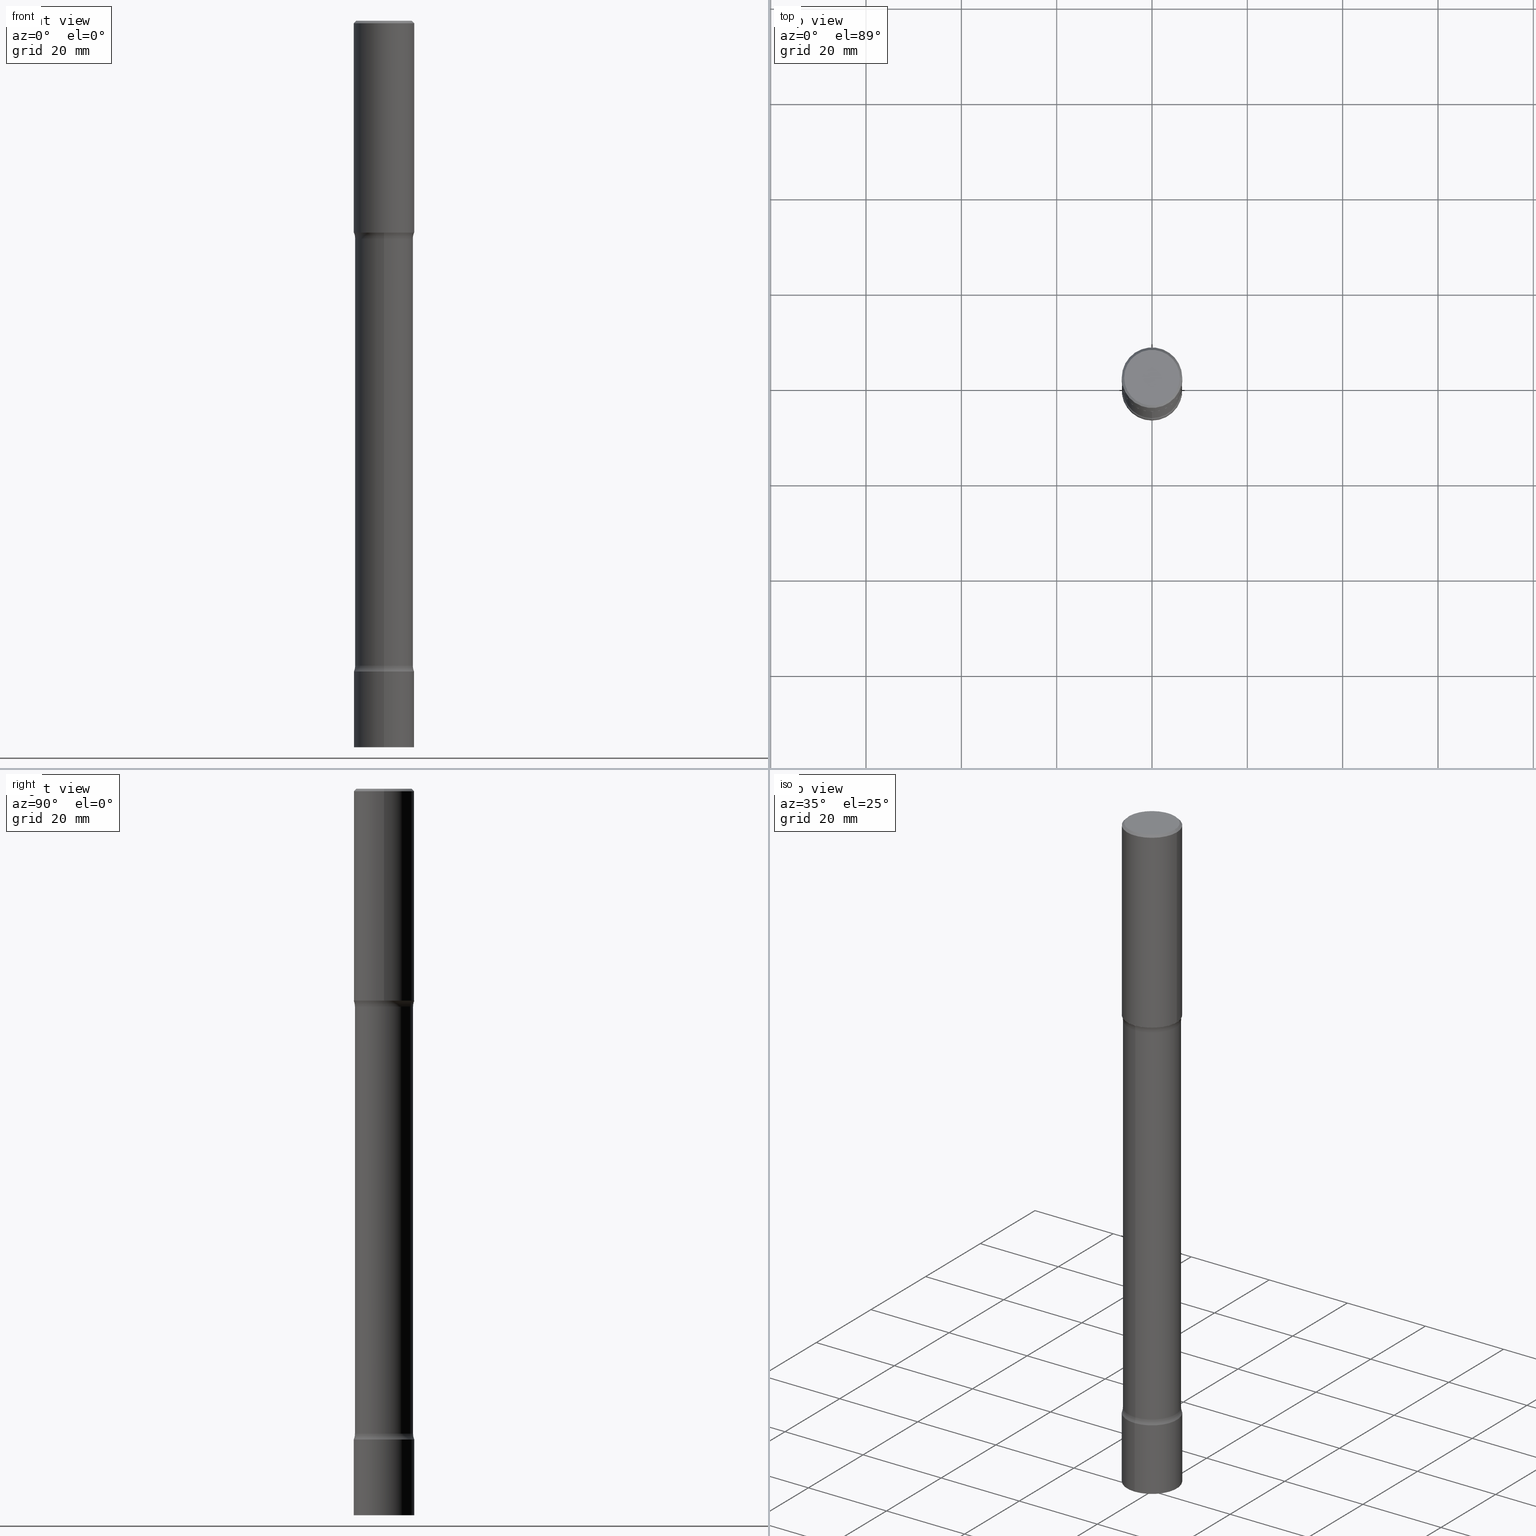
[diagram: canonical four-view strip — front | top / right | iso, engineering-drawing reading convention]
A machine part, canonical four-view strip (front | top / right | iso — engineering-drawing reading convention). The complete STEP part file that produces these views, byte-faithful:
ISO-10303-21;
HEADER;
FILE_DESCRIPTION (( 'STEP AP203' ),
    '1' );
FILE_NAME ('32697.STEP',
    '2024-03-11T13:16:14',
    ( '' ),
    ( '' ),
    'SwSTEP 2.0',
    'SolidWorks 2023',
    '' );
FILE_SCHEMA (( 'CONFIG_CONTROL_DESIGN' ));
ENDSEC;

DATA;
#1 = CYLINDRICAL_SURFACE ( 'NONE', #378, 0.2499999999999998612 ) ;
#2 = EDGE_CURVE ( 'NONE', #488, #205, #156, .T. ) ;
#3 = ORIENTED_EDGE ( 'NONE', *, *, #372, .T. ) ;
#4 =( LENGTH_UNIT ( ) NAMED_UNIT ( * ) SI_UNIT ( $, .METRE. ) );
#5 = DIRECTION ( 'NONE',  ( -1.000000000000000000, 6.982962677686266711E-15, 0.000000000000000000 ) ) ;
#6 = CARTESIAN_POINT ( 'NONE',  ( -2.504081769186481209E-15, -0.3650000000000189204, -5.326010205144336318 ) ) ;
#7 = AXIS2_PLACEMENT_3D ( 'NONE', #375, #101, #177 ) ;
#8 = VECTOR ( 'NONE', #242, 39.37007874015748143 ) ;
#9 = EDGE_LOOP ( 'NONE', ( #315, #24, #418, #357 ) ) ;
#10 = APPROVAL_STATUS ( 'not_yet_approved' ) ;
#11 = DIRECTION ( 'NONE',  ( 2.869131418733858513E-29, -2.884772364294969473E-15, -1.000000000000000000 ) ) ;
#12 = ADVANCED_FACE ( 'NONE', ( #411 ), #267, .F. ) ;
#13 = ORIENTED_EDGE ( 'NONE', *, *, #455, .T. ) ;
#14 = LINE ( 'NONE', #80, #148 ) ;
#15 = TOROIDAL_SURFACE ( 'NONE', #324, 0.3650000000000003242, 0.1249999999999999584 ) ;
#16 = CONICAL_SURFACE ( 'NONE', #352, 0.2499999999999997224, 0.7853981633974477239 ) ;
#17 = APPROVAL_PERSON_ORGANIZATION ( #338, #334, #508 ) ;
#18 = DIRECTION ( 'NONE',  ( -2.445468806185136597E-29, 3.491481338843145583E-15, 1.000000000000000000 ) ) ;
#19 = VERTEX_POINT ( 'NONE', #76 ) ;
#20 = ADVANCED_FACE ( 'NONE', ( #211 ), #248, .F. ) ;
#21 = DIRECTION ( 'NONE',  ( 2.869131418733858513E-29, -2.884772364294969473E-15, -1.000000000000000000 ) ) ;
#22 = VERTEX_POINT ( 'NONE', #40 ) ;
#23 = CYLINDRICAL_SURFACE ( 'NONE', #469, 0.2400000000000014622 ) ;
#24 = ORIENTED_EDGE ( 'NONE', *, *, #296, .T. ) ;
#25 = CLOSED_SHELL ( 'NONE', ( #171, #96, #406, #136, #81, #158 ) ) ;
#26 = AXIS2_PLACEMENT_3D ( 'NONE', #260, #348, #423 ) ;
#27 = FACE_OUTER_BOUND ( 'NONE', #323, .T. ) ;
#28 = CARTESIAN_POINT ( 'NONE',  ( -4.175405657340879278E-46, 5.961372681521788801E-32, 1.707404996040164512E-17 ) ) ;
#29 = CARTESIAN_POINT ( 'NONE',  ( 2.920953000947528011E-29, -8.398321492597618076E-15, -1.798989794855665014 ) ) ;
#30 = EDGE_CURVE ( 'NONE', #127, #262, #281, .T. ) ;
#31 = DIRECTION ( 'NONE',  ( -2.445167468974182699E-29, 3.491912870880280667E-15, 1.000000000000000000 ) ) ;
#32 = DIRECTION ( 'NONE',  ( -2.445167468974182699E-29, 3.491912870880280272E-15, 1.000000000000000000 ) ) ;
#33 = ORIENTED_EDGE ( 'NONE', *, *, #303, .T. ) ;
#34 = VECTOR ( 'NONE', #32, 39.37007874015748143 ) ;
#35 = CALENDAR_DATE ( 2024, 11, 3 ) ;
#36 = EDGE_CURVE ( 'NONE', #262, #127, #70, .T. ) ;
#37 = LENGTH_MEASURE_WITH_UNIT ( LENGTH_MEASURE( 0.02539999999999999897 ), #4 );
#38 = ORIENTED_EDGE ( 'NONE', *, *, #447, .F. ) ;
#39 = PERSON_AND_ORGANIZATION_ROLE ( 'creator' ) ;
#40 = CARTESIAN_POINT ( 'NONE',  ( 0.2499999999999997224, -1.784954126219743822E-15, -0.02000000000000000042 ) ) ;
#41 = EDGE_LOOP ( 'NONE', ( #339, #62, #364, #480 ) ) ;
#42 = APPLICATION_PROTOCOL_DEFINITION ( 'international standard', 'config_control_design', 1994, #121 ) ;
#43 = LOCAL_TIME ( 9, 16, 14.00000000000000000, #227 ) ;
#44 = CARTESIAN_POINT ( 'NONE',  ( 0.2500000000000000000, -7.855833012397075293E-15, -1.750000000000001332 ) ) ;
#45 = EDGE_CURVE ( 'NONE', #275, #137, #131, .T. ) ;
#46 = ORIENTED_EDGE ( 'NONE', *, *, #346, .T. ) ;
#47 = DATE_AND_TIME ( #149, #43 ) ;
#48 = DIRECTION ( 'NONE',  ( 1.000000000000000000, -6.982962677686265922E-15, 4.876176775795935793E-29 ) ) ;
#49 = CARTESIAN_POINT ( 'NONE',  ( 1.302459181810417859E-28, -1.859566524174961022E-14, -5.326010205144338094 ) ) ;
#50 = CARTESIAN_POINT ( 'NONE',  ( 1.776356839400388910E-15, 0.2499999999999789613, -6.000000000000001776 ) ) ;
#51 = AXIS2_PLACEMENT_3D ( 'NONE', #313, #475, #274 ) ;
#52 = FACE_OUTER_BOUND ( 'NONE', #441, .T. ) ;
#53 = DATE_AND_TIME ( #263, #496 ) ;
#54 = DIRECTION ( 'NONE',  ( 6.982962677686265922E-15, 1.000000000000000000, -3.414809992080300328E-15 ) ) ;
#55 = CARTESIAN_POINT ( 'NONE',  ( 1.776356839400396798E-15, 0.2499999999999811262, -5.375000000000002665 ) ) ;
#56 = AXIS2_PLACEMENT_3D ( 'NONE', #144, #170, #214 ) ;
#57 = EDGE_LOOP ( 'NONE', ( #84, #259, #350, #287 ) ) ;
#58 = CARTESIAN_POINT ( 'NONE',  ( 1.745740669421699206E-15, 0.2499999999999814315, -5.375000000000002665 ) ) ;
#59 = EDGE_LOOP ( 'NONE', ( #477, #236, #95, #502 ) ) ;
#60 = DIRECTION ( 'NONE',  ( -6.982962677686265922E-15, -1.000000000000000000, 4.370956789862822727E-15 ) ) ;
#61 = CARTESIAN_POINT ( 'NONE',  ( 4.890937612370273159E-31, -6.982962677686291609E-17, -0.02000000000000000042 ) ) ;
#62 = ORIENTED_EDGE ( 'NONE', *, *, #183, .T. ) ;
#63 = CIRCLE ( 'NONE', #255, 0.1249999999999999584 ) ;
#64 = DIRECTION ( 'NONE',  ( -2.445468806185136877E-29, 3.491481338843145188E-15, 1.000000000000000000 ) ) ;
#65 = CARTESIAN_POINT ( 'NONE',  ( 0.000000000000000000, 0.000000000000000000, 0.000000000000000000 ) ) ;
#66 = CC_DESIGN_PERSON_AND_ORGANIZATION_ASSIGNMENT ( #69, #388, ( #285 ) ) ;
#67 = PLANE ( 'NONE',  #225 ) ;
#68 = UNCERTAINTY_MEASURE_WITH_UNIT (LENGTH_MEASURE( 1.000000000000000082E-05 ), #221, 'distance_accuracy_value', 'NONE');
#69 = PERSON_AND_ORGANIZATION ( #194, #336 ) ;
#70 = CIRCLE ( 'NONE', #503, 0.2299999999999997324 ) ;
#71 = AXIS2_PLACEMENT_3D ( 'NONE', #290, #175, #452 ) ;
#72 = MECHANICAL_CONTEXT ( 'NONE', #311, 'mechanical' ) ;
#73 = ORIENTED_EDGE ( 'NONE', *, *, #271, .T. ) ;
#74 = COORDINATED_UNIVERSAL_TIME_OFFSET ( 5, 0, .BEHIND. ) ;
#75 = CALENDAR_DATE ( 2024, 11, 3 ) ;
#76 = CARTESIAN_POINT ( 'NONE',  ( -1.680822009453898416E-15, -0.2400000000000195588, -5.326010205144336318 ) ) ;
#77 = AXIS2_PLACEMENT_3D ( 'NONE', #128, #278, #79 ) ;
#78 = PLANE ( 'NONE',  #71 ) ;
#79 = DIRECTION ( 'NONE',  ( 6.982962677686265922E-15, 1.000000000000000000, -4.553079989440420159E-15 ) ) ;
#80 = CARTESIAN_POINT ( 'NONE',  ( -0.2499999999999997224, 1.675911042644701999E-15, -0.02000000000000000042 ) ) ;
#81 = ADVANCED_FACE ( 'NONE', ( #114 ), #67, .F. ) ;
#82 = CARTESIAN_POINT ( 'NONE',  ( 2.548781377355619641E-15, 0.3649999999999817835, -5.326010205144338983 ) ) ;
#83 = DIRECTION ( 'NONE',  ( 2.869131418733858513E-29, -2.884772364294969473E-15, -1.000000000000000000 ) ) ;
#84 = ORIENTED_EDGE ( 'NONE', *, *, #271, .F. ) ;
#85 = CARTESIAN_POINT ( 'NONE',  ( 0.2499999999999997224, -1.784954126219743822E-15, -0.02000000000000000042 ) ) ;
#86 = VERTEX_POINT ( 'NONE', #306 ) ;
#87 = MANIFOLD_SOLID_BREP ( 'Body-Move/Copy2[1]', #89 ) ;
#88 = DIRECTION ( 'NONE',  ( -2.445468806185136597E-29, 3.491481338843145583E-15, 1.000000000000000000 ) ) ;
#89 = CLOSED_SHELL ( 'NONE', ( #320, #198, #229, #291 ) ) ;
#90 = AXIS2_PLACEMENT_3D ( 'NONE', #6, #355, #233 ) ;
#91 = ORIENTED_EDGE ( 'NONE', *, *, #36, .T. ) ;
#92 = LINE ( 'NONE', #207, #445 ) ;
#93 = DIRECTION ( 'NONE',  ( 2.869131418733858513E-29, -2.884772364294969473E-15, -1.000000000000000000 ) ) ;
#94 = DESIGN_CONTEXT ( 'detailed design', #121, 'design' ) ;
#95 = ORIENTED_EDGE ( 'NONE', *, *, #2, .F. ) ;
#96 = ADVANCED_FACE ( 'NONE', ( #98 ), #361, .T. ) ;
#97 = CARTESIAN_POINT ( 'NONE',  ( -2.504081769186592833E-15, -0.3650000000000103162, -1.798989794855663904 ) ) ;
#98 = FACE_OUTER_BOUND ( 'NONE', #367, .T. ) ;
#99 = CIRCLE ( 'NONE', #77, 0.2400000000000009626 ) ;
#100 = DIRECTION ( 'NONE',  ( 1.000000000000000000, -6.982962677686266711E-15, 0.000000000000000000 ) ) ;
#101 = DIRECTION ( 'NONE',  ( 2.869131418733858513E-29, -2.884772364294969473E-15, -1.000000000000000000 ) ) ;
#102 = EDGE_CURVE ( 'NONE', #408, #173, #425, .T. ) ;
#103 = DIRECTION ( 'NONE',  ( 0.000000000000000000, 0.000000000000000000, 1.000000000000000000 ) ) ;
#104 = AXIS2_PLACEMENT_3D ( 'NONE', #110, #345, #373 ) ;
#105 = ORIENTED_EDGE ( 'NONE', *, *, #30, .T. ) ;
#106 = AXIS2_PLACEMENT_3D ( 'NONE', #49, #310, #397 ) ;
#107 = DATE_TIME_ROLE ( 'creation_date' ) ;
#108 = ORIENTED_EDGE ( 'NONE', *, *, #264, .T. ) ;
#109 =( NAMED_UNIT ( * ) PLANE_ANGLE_UNIT ( ) SI_UNIT ( $, .RADIAN. ) );
#110 = CARTESIAN_POINT ( 'NONE',  ( 4.279570410823991847E-29, -6.110092342975509404E-15, -1.750000000000001332 ) ) ;
#111 = ORIENTED_EDGE ( 'NONE', *, *, #241, .F. ) ;
#112 = EDGE_CURVE ( 'NONE', #205, #488, #485, .T. ) ;
#113 = COORDINATED_UNIVERSAL_TIME_OFFSET ( 5, 0, .BEHIND. ) ;
#114 = FACE_OUTER_BOUND ( 'NONE', #484, .T. ) ;
#115 = CIRCLE ( 'NONE', #26, 0.2500000000000020539 ) ;
#116 = FACE_OUTER_BOUND ( 'NONE', #478, .T. ) ;
#117 = APPROVAL_ROLE ( '' ) ;
#118 = LINE ( 'NONE', #167, #184 ) ;
#119 = ADVANCED_FACE ( 'NONE', ( #116 ), #15, .F. ) ;
#120 = LINE ( 'NONE', #358, #272 ) ;
#121 = APPLICATION_CONTEXT ( 'configuration controlled 3d designs of mechanical parts and assemblies' ) ;
#122 = DIRECTION ( 'NONE',  ( -2.445468806185136877E-29, 3.491481338843145188E-15, 1.000000000000000000 ) ) ;
#123 = TOROIDAL_SURFACE ( 'NONE', #106, 0.3650000000000003242, 0.1249999999999999584 ) ;
#124 = ORIENTED_EDGE ( 'NONE', *, *, #337, .F. ) ;
#125 = ADVANCED_FACE ( 'NONE', ( #341 ), #462, .F. ) ;
#126 = DIRECTION ( 'NONE',  ( -2.445167468974182699E-29, 3.491912870880280667E-15, 1.000000000000000000 ) ) ;
#127 = VERTEX_POINT ( 'NONE', #224 ) ;
#128 = CARTESIAN_POINT ( 'NONE',  ( 1.300221698611852248E-28, -1.862770727464941642E-14, -5.326010205144338094 ) ) ;
#129 = ORIENTED_EDGE ( 'NONE', *, *, #45, .F. ) ;
#130 = CARTESIAN_POINT ( 'NONE',  ( 1.493598228244489726E-28, -2.057201440866586855E-14, -6.000000000000001776 ) ) ;
#131 = CIRCLE ( 'NONE', #453, 0.2500000000000000000 ) ;
#132 = CIRCLE ( 'NONE', #394, 0.2499999999999997224 ) ;
#133 = CC_DESIGN_APPROVAL ( #365, ( #401 ) ) ;
#134 = ORIENTED_EDGE ( 'NONE', *, *, #447, .T. ) ;
#135 = CARTESIAN_POINT ( 'NONE',  ( -1.745740669421433952E-15, -0.2500000000000186517, -5.375000000000000888 ) ) ;
#136 = ADVANCED_FACE ( 'NONE', ( #384 ), #78, .F. ) ;
#137 = VERTEX_POINT ( 'NONE', #44 ) ;
#138 = CARTESIAN_POINT ( 'NONE',  ( 1.675911042644863518E-15, 0.2399999999999809230, -6.000000000000002665 ) ) ;
#139 = DIRECTION ( 'NONE',  ( -2.445468806185136597E-29, 3.491481338843145583E-15, 1.000000000000000000 ) ) ;
#140 = CARTESIAN_POINT ( 'NONE',  ( -1.745740669421419161E-15, -0.2500000000000208722, -5.999999999999999112 ) ) ;
#141 = AXIS2_PLACEMENT_3D ( 'NONE', #490, #506, #5 ) ;
#142 = DIRECTION ( 'NONE',  ( 1.000000000000000000, -6.982962677686266711E-15, 4.875813741439105379E-29 ) ) ;
#143 = CIRCLE ( 'NONE', #201, 0.2499999999999997224 ) ;
#144 = CARTESIAN_POINT ( 'NONE',  ( 1.300221698611852248E-28, -1.862770727464941642E-14, -5.326010205144338094 ) ) ;
#145 = ORIENTED_EDGE ( 'NONE', *, *, #467, .F. ) ;
#146 = APPLICATION_PROTOCOL_DEFINITION ( 'international standard', 'config_control_design', 1994, #311 ) ;
#147 = EDGE_LOOP ( 'NONE', ( #38, #443, #46, #403 ) ) ;
#148 = VECTOR ( 'NONE', #356, 39.37007874015748143 ) ;
#149 = CALENDAR_DATE ( 2024, 11, 3 ) ;
#150 = DIRECTION ( 'NONE',  ( 2.869131418733858513E-29, -2.884772364294969473E-15, -1.000000000000000000 ) ) ;
#151 = PERSON_AND_ORGANIZATION_ROLE ( 'creator' ) ;
#152 = CARTESIAN_POINT ( 'NONE',  ( 0.000000000000000000, 0.000000000000000000, 0.000000000000000000 ) ) ;
#153 = DATE_AND_TIME ( #196, #202 ) ;
#154 = CARTESIAN_POINT ( 'NONE',  ( 1.467100481384509675E-28, -2.095147722528168321E-14, -6.000000000000000888 ) ) ;
#155 = ORIENTED_EDGE ( 'NONE', *, *, #392, .F. ) ;
#156 = CIRCLE ( 'NONE', #444, 0.2499999999999998612 ) ;
#157 = CIRCLE ( 'NONE', #409, 0.2500000000000000000 ) ;
#158 = ADVANCED_FACE ( 'NONE', ( #186 ), #1, .T. ) ;
#159 = LINE ( 'NONE', #85, #400 ) ;
#160 = CARTESIAN_POINT ( 'NONE',  ( 0.2299999999999997324, -1.681434332853597236E-15, 1.707404996041313907E-17 ) ) ;
#161 = PLANE ( 'NONE',  #51 ) ;
#162 = AXIS2_PLACEMENT_3D ( 'NONE', #250, #381, #333 ) ;
#163 = CARTESIAN_POINT ( 'NONE',  ( 1.314277514573623709E-28, -1.876903168098151268E-14, -5.375000000000001776 ) ) ;
#164 = AXIS2_PLACEMENT_3D ( 'NONE', #231, #321, #481 ) ;
#165 = APPROVAL_PERSON_ORGANIZATION ( #223, #365, #420 ) ;
#166 = ORIENTED_EDGE ( 'NONE', *, *, #241, .T. ) ;
#167 = CARTESIAN_POINT ( 'NONE',  ( -1.745740669421565692E-15, -0.2499999999999998890, 8.729782177200697723E-16 ) ) ;
#168 = DIRECTION ( 'NONE',  ( 6.982962677686265922E-15, 1.000000000000000000, -4.553079989440410693E-15 ) ) ;
#169 = ORIENTED_EDGE ( 'NONE', *, *, #30, .F. ) ;
#170 = DIRECTION ( 'NONE',  ( 2.869131418733858513E-29, -2.884772364294969473E-15, -1.000000000000000000 ) ) ;
#171 = ADVANCED_FACE ( 'NONE', ( #389 ), #479, .T. ) ;
#172 = CIRCLE ( 'NONE', #362, 0.1249999999999999584 ) ;
#173 = VERTEX_POINT ( 'NONE', #50 ) ;
#174 = CARTESIAN_POINT ( 'NONE',  ( 1.776356839400249479E-15, 0.2499999999999998890, -8.729782177200697723E-16 ) ) ;
#175 = DIRECTION ( 'NONE',  ( 2.438088387897960049E-29, -3.491481338843145188E-15, -1.000000000000000000 ) ) ;
#176 = DIRECTION ( 'NONE',  ( 2.869131418733858513E-29, -2.884772364294969473E-15, -1.000000000000000000 ) ) ;
#177 = DIRECTION ( 'NONE',  ( 6.982962677686265133E-15, 1.000000000000000000, -2.884772364294969473E-15 ) ) ;
#178 = FACE_OUTER_BOUND ( 'NONE', #59, .T. ) ;
#179 = VECTOR ( 'NONE', #11, 39.37007874015748143 ) ;
#180 = COORDINATED_UNIVERSAL_TIME_OFFSET ( 5, 0, .BEHIND. ) ;
#181 = DIRECTION ( 'NONE',  ( 1.000000000000000000, 0.000000000000000000, 0.000000000000000000 ) ) ;
#182 = ORIENTED_EDGE ( 'NONE', *, *, #359, .F. ) ;
#183 = EDGE_CURVE ( 'NONE', #499, #19, #363, .T. ) ;
#184 = VECTOR ( 'NONE', #200, 39.37007874015748143 ) ;
#185 = ORIENTED_EDGE ( 'NONE', *, *, #2, .T. ) ;
#186 = FACE_OUTER_BOUND ( 'NONE', #57, .T. ) ;
#187 = PERSON_AND_ORGANIZATION ( #194, #336 ) ;
#188 = DIRECTION ( 'NONE',  ( 1.000000000000000000, -6.982962677686266711E-15, 0.000000000000000000 ) ) ;
#189 = EDGE_CURVE ( 'NONE', #127, #297, #14, .T. ) ;
#190 = DIRECTION ( 'NONE',  ( 2.869131418733858513E-29, -2.884772364294969473E-15, -1.000000000000000000 ) ) ;
#191 = CC_DESIGN_PERSON_AND_ORGANIZATION_ASSIGNMENT ( #187, #151, ( #314 ) ) ;
#192 = AXIS2_PLACEMENT_3D ( 'NONE', #374, #208, #376 ) ;
#193 = DIRECTION ( 'NONE',  ( 6.982962677686265922E-15, 1.000000000000000000, -3.491912870880280272E-15 ) ) ;
#194 = PERSON ( 'UNSPECIFIED', 'UNSPECIFIED', 'UNSPECIFIED', ('UNSPECIFIED'), ('UNSPECIFIED'), ('UNSPECIFIED') ) ;
#195 = DIRECTION ( 'NONE',  ( -6.982962677686265922E-15, -1.000000000000000000, 3.491912870880280667E-15 ) ) ;
#196 = CALENDAR_DATE ( 2024, 11, 3 ) ;
#197 = CARTESIAN_POINT ( 'NONE',  ( 2.882731912443707579E-29, -8.453056266744347399E-15, -1.798989794855665014 ) ) ;
#198 = ADVANCED_FACE ( 'NONE', ( #399 ), #472, .T. ) ;
#199 = VERTEX_POINT ( 'NONE', #270 ) ;
#200 = DIRECTION ( 'NONE',  ( -2.445167468974182699E-29, 3.491912870880280272E-15, 1.000000000000000000 ) ) ;
#201 = AXIS2_PLACEMENT_3D ( 'NONE', #282, #456, #100 ) ;
#202 = LOCAL_TIME ( 9, 16, 14.00000000000000000, #269 ) ;
#203 = ORIENTED_EDGE ( 'NONE', *, *, #36, .F. ) ;
#204 = DIRECTION ( 'NONE',  ( 1.000000000000000000, -6.982962677686266711E-15, 0.000000000000000000 ) ) ;
#205 = VERTEX_POINT ( 'NONE', #55 ) ;
#206 = EDGE_CURVE ( 'NONE', #408, #488, #118, .T. ) ;
#207 = CARTESIAN_POINT ( 'NONE',  ( 0.2499999999999998612, -1.745740669421565692E-15, 1.219044193948983248E-29 ) ) ;
#208 = DIRECTION ( 'NONE',  ( -1.000000000000000000, 6.982962677686265922E-15, -4.883557194083112340E-29 ) ) ;
#209 = AXIS2_PLACEMENT_3D ( 'NONE', #65, #491, #245 ) ;
#210 =( GEOMETRIC_REPRESENTATION_CONTEXT ( 3 ) GLOBAL_UNCERTAINTY_ASSIGNED_CONTEXT ( ( #68 ) ) GLOBAL_UNIT_ASSIGNED_CONTEXT ( ( #221, #109, #253 ) ) REPRESENTATION_CONTEXT ( 'NONE', 'WORKASPACE' ) );
#211 = FACE_OUTER_BOUND ( 'NONE', #147, .T. ) ;
#212 = EDGE_CURVE ( 'NONE', #343, #499, #218, .T. ) ;
#213 = ORIENTED_EDGE ( 'NONE', *, *, #467, .T. ) ;
#214 = DIRECTION ( 'NONE',  ( 6.982962677686265922E-15, 1.000000000000000000, -4.553079989440420159E-15 ) ) ;
#215 = CC_DESIGN_DATE_AND_TIME_ASSIGNMENT ( #53, #273, ( #327 ) ) ;
#216 = DIRECTION ( 'NONE',  ( -6.982962677686265922E-15, -1.000000000000000000, 4.370956789862822727E-15 ) ) ;
#217 = APPROVAL_STATUS ( 'not_yet_approved' ) ;
#218 = CIRCLE ( 'NONE', #164, 0.2400000000000020173 ) ;
#219 = ORIENTED_EDGE ( 'NONE', *, *, #112, .T. ) ;
#220 = EDGE_CURVE ( 'NONE', #86, #19, #99, .T. ) ;
#221 =( CONVERSION_BASED_UNIT ( 'INCH', #37 ) LENGTH_UNIT ( ) NAMED_UNIT ( #492 ) );
#222 = ORIENTED_EDGE ( 'NONE', *, *, #296, .F. ) ;
#223 = PERSON_AND_ORGANIZATION ( #194, #336 ) ;
#224 = CARTESIAN_POINT ( 'NONE',  ( -0.2299999999999997324, 1.640996229256270744E-15, 1.707404996039028983E-17 ) ) ;
#225 = AXIS2_PLACEMENT_3D ( 'NONE', #331, #413, #48 ) ;
#226 = EDGE_LOOP ( 'NONE', ( #155, #238, #450, #319 ) ) ;
#227 = COORDINATED_UNIVERSAL_TIME_OFFSET ( 5, 0, .BEHIND. ) ;
#228 = DIRECTION ( 'NONE',  ( 1.000000000000000000, -6.982962677686266711E-15, 4.876176775795935793E-29 ) ) ;
#229 = ADVANCED_FACE ( 'NONE', ( #230 ), #268, .F. ) ;
#230 = FACE_OUTER_BOUND ( 'NONE', #416, .T. ) ;
#231 = CARTESIAN_POINT ( 'NONE',  ( 2.882731912443707579E-29, -8.453056266744347399E-15, -1.798989794855665014 ) ) ;
#232 = AXIS2_PLACEMENT_3D ( 'NONE', #239, #21, #368 ) ;
#233 = DIRECTION ( 'NONE',  ( 6.860497997771532351E-15, 1.000000000000000000, 0.000000000000000000 ) ) ;
#234 = ADVANCED_FACE ( 'NONE', ( #391 ), #123, .F. ) ;
#235 = CARTESIAN_POINT ( 'NONE',  ( -0.2499999999999999722, -1.313604145475934309E-15, -1.750000000000001332 ) ) ;
#236 = ORIENTED_EDGE ( 'NONE', *, *, #392, .T. ) ;
#237 = CARTESIAN_POINT ( 'NONE',  ( -1.646519519465027931E-15, -0.2400000000000220290, -6.000000000000000888 ) ) ;
#238 = ORIENTED_EDGE ( 'NONE', *, *, #419, .T. ) ;
#239 = CARTESIAN_POINT ( 'NONE',  ( 1.314277514573623709E-28, -1.876903168098151268E-14, -5.375000000000001776 ) ) ;
#240 = CIRCLE ( 'NONE', #293, 0.2499999999999999167 ) ;
#241 = EDGE_CURVE ( 'NONE', #464, #19, #505, .T. ) ;
#242 = DIRECTION ( 'NONE',  ( 2.869131418733858513E-29, -2.884772364294969473E-15, -1.000000000000000000 ) ) ;
#243 = ORIENTED_EDGE ( 'NONE', *, *, #256, .F. ) ;
#244 = MANIFOLD_SOLID_BREP ( 'Body-Move/Copy2[2]', #25 ) ;
#245 = DIRECTION ( 'NONE',  ( -6.982962677686265922E-15, -1.000000000000000000, 3.491912870880280667E-15 ) ) ;
#246 = ORIENTED_EDGE ( 'NONE', *, *, #189, .T. ) ;
#247 = DIRECTION ( 'NONE',  ( -2.445468806185136597E-29, 3.491481338843145583E-15, 1.000000000000000000 ) ) ;
#248 = TOROIDAL_SURFACE ( 'NONE', #7, 0.3650000000000019340, 0.1249999999999999861 ) ;
#249 = CIRCLE ( 'NONE', #342, 0.2500000000000020539 ) ;
#250 = CARTESIAN_POINT ( 'NONE',  ( 1.314439483324511369E-28, -1.876671219628191278E-14, -5.375000000000001776 ) ) ;
#251 = CARTESIAN_POINT ( 'NONE',  ( 1.493598228244489726E-28, -2.057201440866586855E-14, -6.000000000000001776 ) ) ;
#252 = CARTESIAN_POINT ( 'NONE',  ( 1.314277514573623709E-28, -1.876903168098151268E-14, -5.375000000000001776 ) ) ;
#253 =( NAMED_UNIT ( * ) SI_UNIT ( $, .STERADIAN. ) SOLID_ANGLE_UNIT ( ) );
#254 = AXIS2_PLACEMENT_3D ( 'NONE', #252, #307, #421 ) ;
#255 = AXIS2_PLACEMENT_3D ( 'NONE', #82, #351, #396 ) ;
#256 = EDGE_CURVE ( 'NONE', #328, #464, #494, .T. ) ;
#257 = ORIENTED_EDGE ( 'NONE', *, *, #279, .T. ) ;
#258 = DATE_AND_TIME ( #75, #426 ) ;
#259 = ORIENTED_EDGE ( 'NONE', *, *, #45, .T. ) ;
#260 = CARTESIAN_POINT ( 'NONE',  ( 2.742173752825996893E-29, -8.311731860412247990E-15, -1.750000000000001332 ) ) ;
#261 = DIRECTION ( 'NONE',  ( -2.445167468974182699E-29, 3.491912870880280667E-15, 1.000000000000000000 ) ) ;
#262 = VERTEX_POINT ( 'NONE', #160 ) ;
#263 = CALENDAR_DATE ( 2024, 11, 3 ) ;
#264 = EDGE_CURVE ( 'NONE', #262, #22, #159, .T. ) ;
#265 = DIRECTION ( 'NONE',  ( 1.000000000000000000, -6.982962677686266711E-15, 4.875813741439105379E-29 ) ) ;
#266 = CIRCLE ( 'NONE', #316, 0.2400000000000020173 ) ;
#267 = PLANE ( 'NONE',  #162 ) ;
#268 = PLANE ( 'NONE',  #283 ) ;
#269 = COORDINATED_UNIVERSAL_TIME_OFFSET ( 5, 0, .BEHIND. ) ;
#270 = CARTESIAN_POINT ( 'NONE',  ( -1.715124499442869086E-15, -0.2500000000000103251, -1.750000000000000444 ) ) ;
#271 = EDGE_CURVE ( 'NONE', #275, #297, #120, .T. ) ;
#272 = VECTOR ( 'NONE', #122, 39.37007874015748143 ) ;
#273 = DATE_TIME_ROLE ( 'classification_date' ) ;
#274 = DIRECTION ( 'NONE',  ( 6.982962677686265922E-15, 1.000000000000000000, -3.491912870880280272E-15 ) ) ;
#275 = VERTEX_POINT ( 'NONE', #235 ) ;
#276 = DIRECTION ( 'NONE',  ( 6.982962677686265922E-15, 1.000000000000000000, -4.370956789862823516E-15 ) ) ;
#277 = ORIENTED_EDGE ( 'NONE', *, *, #419, .F. ) ;
#278 = DIRECTION ( 'NONE',  ( 2.869131418733858513E-29, -2.884772364294969473E-15, -1.000000000000000000 ) ) ;
#279 = EDGE_CURVE ( 'NONE', #328, #86, #63, .T. ) ;
#280 = ORIENTED_EDGE ( 'NONE', *, *, #102, .F. ) ;
#281 = CIRCLE ( 'NONE', #434, 0.2299999999999997324 ) ;
#282 = CARTESIAN_POINT ( 'NONE',  ( 4.890937612370273159E-31, -6.982962677686291609E-17, -0.02000000000000000042 ) ) ;
#283 = AXIS2_PLACEMENT_3D ( 'NONE', #393, #312, #193 ) ;
#284 = ORIENTED_EDGE ( 'NONE', *, *, #303, .F. ) ;
#285 = PRODUCT ( '32697', '32697', '', ( #72 ) ) ;
#286 = LINE ( 'NONE', #174, #34 ) ;
#287 = ORIENTED_EDGE ( 'NONE', *, *, #455, .F. ) ;
#288 = ADVANCED_BREP_SHAPE_REPRESENTATION ( '32697', ( #87, #244, #430, #299 ), #210 ) ;
#289 = FACE_OUTER_BOUND ( 'NONE', #41, .T. ) ;
#290 = CARTESIAN_POINT ( 'NONE',  ( 1.606081415867839292E-15, 0.2299999999999997324, -7.945036829537217511E-16 ) ) ;
#291 = ADVANCED_FACE ( 'NONE', ( #52 ), #161, .T. ) ;
#292 = DIRECTION ( 'NONE',  ( 6.860497997771532351E-15, 1.000000000000000000, 0.000000000000000000 ) ) ;
#293 = AXIS2_PLACEMENT_3D ( 'NONE', #451, #407, #60 ) ;
#294 = CARTESIAN_POINT ( 'NONE',  ( 4.279570410823991847E-29, -6.110092342975509404E-15, -1.750000000000001332 ) ) ;
#295 = CARTESIAN_POINT ( 'NONE',  ( -1.680822009454010631E-15, -0.2400000000000104827, -1.798989794855664126 ) ) ;
#296 = EDGE_CURVE ( 'NONE', #499, #343, #266, .T. ) ;
#297 = VERTEX_POINT ( 'NONE', #318 ) ;
#298 = DATE_AND_TIME ( #35, #507 ) ;
#299 = AXIS2_PLACEMENT_3D ( 'NONE', #498, #103, #181 ) ;
#300 = ORIENTED_EDGE ( 'NONE', *, *, #256, .T. ) ;
#301 = PERSON_AND_ORGANIZATION ( #194, #336 ) ;
#302 = DIRECTION ( 'NONE',  ( 6.982962677686265922E-15, 1.000000000000000000, -2.884772364294969473E-15 ) ) ;
#303 = EDGE_CURVE ( 'NONE', #199, #497, #249, .T. ) ;
#304 = ORIENTED_EDGE ( 'NONE', *, *, #279, .F. ) ;
#305 = PERSON_AND_ORGANIZATION_ROLE ( 'design_supplier' ) ;
#306 = CARTESIAN_POINT ( 'NONE',  ( 1.675911042644840444E-15, 0.2399999999999823386, -5.326010205144338983 ) ) ;
#307 = DIRECTION ( 'NONE',  ( -2.445167468974182699E-29, 3.491912870880280667E-15, 1.000000000000000000 ) ) ;
#308 = AXIS2_PLACEMENT_3D ( 'NONE', #130, #446, #487 ) ;
#309 = APPROVAL_PERSON_ORGANIZATION ( #470, #463, #117 ) ;
#310 = DIRECTION ( 'NONE',  ( 2.869131418733858513E-29, -2.884772364294969473E-15, -1.000000000000000000 ) ) ;
#311 = APPLICATION_CONTEXT ( 'configuration controlled 3d designs of mechanical parts and assemblies' ) ;
#312 = DIRECTION ( 'NONE',  ( 2.445167468974182419E-29, -3.491912870880280272E-15, -1.000000000000000000 ) ) ;
#313 = CARTESIAN_POINT ( 'NONE',  ( 3.298614971474573348E-28, 5.276852706118103100E-15, -6.000000000000001776 ) ) ;
#314 = PRODUCT_DEFINITION ( 'UNKNOWN', '', #401, #94 ) ;
#315 = ORIENTED_EDGE ( 'NONE', *, *, #183, .F. ) ;
#316 = AXIS2_PLACEMENT_3D ( 'NONE', #197, #83, #54 ) ;
#317 = CC_DESIGN_SECURITY_CLASSIFICATION ( #327, ( #401 ) ) ;
#318 = CARTESIAN_POINT ( 'NONE',  ( -0.2499999999999997224, 1.675911042644701999E-15, -0.02000000000000000042 ) ) ;
#319 = ORIENTED_EDGE ( 'NONE', *, *, #112, .F. ) ;
#320 = ADVANCED_FACE ( 'NONE', ( #178 ), #495, .T. ) ;
#321 = DIRECTION ( 'NONE',  ( 2.869131418733858513E-29, -2.884772364294969473E-15, -1.000000000000000000 ) ) ;
#322 = DIRECTION ( 'NONE',  ( 2.445468806185136597E-29, -3.491481338843145583E-15, -1.000000000000000000 ) ) ;
#323 = EDGE_LOOP ( 'NONE', ( #222, #134, #33, #422 ) ) ;
#324 = AXIS2_PLACEMENT_3D ( 'NONE', #424, #150, #302 ) ;
#325 = CYLINDRICAL_SURFACE ( 'NONE', #308, 0.2400000000000014622 ) ;
#326 = CIRCLE ( 'NONE', #56, 0.2400000000000009626 ) ;
#327 = SECURITY_CLASSIFICATION ( '', '', #504 ) ;
#328 = VERTEX_POINT ( 'NONE', #58 ) ;
#329 = DIRECTION ( 'NONE',  ( 2.869131418733858513E-29, -2.884772364294969473E-15, -1.000000000000000000 ) ) ;
#330 = EDGE_CURVE ( 'NONE', #343, #86, #489, .T. ) ;
#331 = CARTESIAN_POINT ( 'NONE',  ( 4.279570410823991847E-29, -6.110092342975509404E-15, -1.750000000000001332 ) ) ;
#332 = CARTESIAN_POINT ( 'NONE',  ( 4.890937612370273159E-31, -6.982962677686291609E-17, -0.02000000000000000042 ) ) ;
#333 = DIRECTION ( 'NONE',  ( -6.982962677686265922E-15, -1.000000000000000000, 2.884772364294969473E-15 ) ) ;
#334 = APPROVAL ( #383, 'UNSPECIFIED' ) ;
#335 = DIRECTION ( 'NONE',  ( -1.000000000000000000, 6.982962677686266711E-15, 0.000000000000000000 ) ) ;
#336 = ORGANIZATION ( 'UNSPECIFIED', 'UNSPECIFIED', '' ) ;
#337 = EDGE_CURVE ( 'NONE', #137, #275, #157, .T. ) ;
#338 = PERSON_AND_ORGANIZATION ( #194, #336 ) ;
#339 = ORIENTED_EDGE ( 'NONE', *, *, #212, .T. ) ;
#340 = PERSON_AND_ORGANIZATION ( #194, #336 ) ;
#341 = FACE_OUTER_BOUND ( 'NONE', #461, .T. ) ;
#342 = AXIS2_PLACEMENT_3D ( 'NONE', #440, #176, #410 ) ;
#343 = VERTEX_POINT ( 'NONE', #404 ) ;
#344 = CARTESIAN_POINT ( 'NONE',  ( 1.745740669421608290E-15, 0.2499999999999937550, -1.750000000000001998 ) ) ;
#345 = DIRECTION ( 'NONE',  ( 2.869131418733858513E-29, -2.884772364294969473E-15, -1.000000000000000000 ) ) ;
#346 = EDGE_CURVE ( 'NONE', #343, #497, #415, .T. ) ;
#347 = EDGE_LOOP ( 'NONE', ( #105, #91 ) ) ;
#348 = DIRECTION ( 'NONE',  ( 2.869131418733858513E-29, -2.884772364294969473E-15, -1.000000000000000000 ) ) ;
#349 = DIRECTION ( 'NONE',  ( -2.445468806185136597E-29, 3.491481338843145583E-15, 1.000000000000000000 ) ) ;
#350 = ORIENTED_EDGE ( 'NONE', *, *, #359, .T. ) ;
#351 = DIRECTION ( 'NONE',  ( -1.000000000000000000, 6.982962677686265922E-15, -4.883557194083112340E-29 ) ) ;
#352 = AXIS2_PLACEMENT_3D ( 'NONE', #332, #322, #335 ) ;
#353 = CC_DESIGN_APPROVAL ( #463, ( #327 ) ) ;
#354 = ADVANCED_FACE ( 'NONE', ( #289 ), #23, .T. ) ;
#355 = DIRECTION ( 'NONE',  ( 1.000000000000000000, -6.860497997771530774E-15, 4.848228921661086482E-29 ) ) ;
#356 = DIRECTION ( 'NONE',  ( -0.7071067811865471286, 2.468850131082252722E-15, -0.7071067811865479058 ) ) ;
#357 = ORIENTED_EDGE ( 'NONE', *, *, #372, .F. ) ;
#358 = CARTESIAN_POINT ( 'NONE',  ( -0.2499999999999998612, 1.776356839400249479E-15, -1.229733772563725745E-29 ) ) ;
#359 = EDGE_CURVE ( 'NONE', #137, #22, #92, .T. ) ;
#360 = EDGE_LOOP ( 'NONE', ( #459, #169, #246, #13 ) ) ;
#361 = CONICAL_SURFACE ( 'NONE', #141, 0.2499999999999997224, 0.7853981633974477239 ) ;
#362 = AXIS2_PLACEMENT_3D ( 'NONE', #97, #402, #292 ) ;
#363 = LINE ( 'NONE', #237, #179 ) ;
#364 = ORIENTED_EDGE ( 'NONE', *, *, #220, .F. ) ;
#365 = APPROVAL ( #217, 'UNSPECIFIED' ) ;
#366 = DIRECTION ( 'NONE',  ( 6.982962677686265133E-15, 1.000000000000000000, -2.884772364294969473E-15 ) ) ;
#367 = EDGE_LOOP ( 'NONE', ( #203, #108, #382, #398 ) ) ;
#368 = DIRECTION ( 'NONE',  ( 6.982962677686265922E-15, 1.000000000000000000, -4.370956789862823516E-15 ) ) ;
#369 = PRODUCT_DEFINITION_SHAPE ( 'NONE', 'NONE',  #314 ) ;
#370 = ORIENTED_EDGE ( 'NONE', *, *, #501, .F. ) ;
#371 = FACE_OUTER_BOUND ( 'NONE', #360, .T. ) ;
#372 = EDGE_CURVE ( 'NONE', #19, #86, #326, .T. ) ;
#373 = DIRECTION ( 'NONE',  ( 6.982962677686265922E-15, 1.000000000000000000, -2.884772364294969473E-15 ) ) ;
#374 = CARTESIAN_POINT ( 'NONE',  ( 2.548781377355529317E-15, 0.3649999999999934963, -1.798989794855666124 ) ) ;
#375 = CARTESIAN_POINT ( 'NONE',  ( 2.920953000947528011E-29, -8.398321492597618076E-15, -1.798989794855665014 ) ) ;
#376 = DIRECTION ( 'NONE',  ( -6.982962677686267499E-15, -1.000000000000000000, 0.000000000000000000 ) ) ;
#377 = ADVANCED_FACE ( 'NONE', ( #27 ), #476, .F. ) ;
#378 = AXIS2_PLACEMENT_3D ( 'NONE', #152, #466, #228 ) ;
#379 = CC_DESIGN_PERSON_AND_ORGANIZATION_ASSIGNMENT ( #417, #39, ( #401 ) ) ;
#380 = APPROVAL_DATE_TIME ( #258, #365 ) ;
#381 = DIRECTION ( 'NONE',  ( -2.869131418733858513E-29, 2.884772364294969473E-15, 1.000000000000000000 ) ) ;
#382 = ORIENTED_EDGE ( 'NONE', *, *, #439, .T. ) ;
#383 = APPROVAL_STATUS ( 'not_yet_approved' ) ;
#384 = FACE_OUTER_BOUND ( 'NONE', #347, .T. ) ;
#385 = CLOSED_SHELL ( 'NONE', ( #354, #119, #377, #20, #125, #12, #234, #483 ) ) ;
#386 = AXIS2_PLACEMENT_3D ( 'NONE', #29, #93, #366 ) ;
#387 = ORIENTED_EDGE ( 'NONE', *, *, #439, .F. ) ;
#388 = PERSON_AND_ORGANIZATION_ROLE ( 'design_owner' ) ;
#389 = FACE_OUTER_BOUND ( 'NONE', #448, .T. ) ;
#390 = CC_DESIGN_PERSON_AND_ORGANIZATION_ASSIGNMENT ( #340, #305, ( #401 ) ) ;
#391 = FACE_OUTER_BOUND ( 'NONE', #427, .T. ) ;
#392 = EDGE_CURVE ( 'NONE', #173, #205, #286, .T. ) ;
#393 = CARTESIAN_POINT ( 'NONE',  ( 1.314439483324511369E-28, -1.876671219628191278E-14, -5.375000000000001776 ) ) ;
#394 = AXIS2_PLACEMENT_3D ( 'NONE', #61, #88, #204 ) ;
#395 = PRODUCT_RELATED_PRODUCT_CATEGORY ( 'detail', '', ( #285 ) ) ;
#396 = DIRECTION ( 'NONE',  ( -6.982962677686265133E-15, -1.000000000000000000, 0.000000000000000000 ) ) ;
#397 = DIRECTION ( 'NONE',  ( 6.982962677686265922E-15, 1.000000000000000000, -2.884772364294969473E-15 ) ) ;
#398 = ORIENTED_EDGE ( 'NONE', *, *, #189, .F. ) ;
#399 = FACE_OUTER_BOUND ( 'NONE', #226, .T. ) ;
#400 = VECTOR ( 'NONE', #473, 39.37007874015748143 ) ;
#401 = PRODUCT_DEFINITION_FORMATION_WITH_SPECIFIED_SOURCE ( 'ANY', '', #285, .NOT_KNOWN. ) ;
#402 = DIRECTION ( 'NONE',  ( 1.000000000000000000, -6.860497997771530774E-15, 4.848228921661086482E-29 ) ) ;
#403 = ORIENTED_EDGE ( 'NONE', *, *, #501, .T. ) ;
#404 = CARTESIAN_POINT ( 'NONE',  ( 1.675911042644746767E-15, 0.2399999999999935518, -1.798989794855665902 ) ) ;
#405 = EDGE_LOOP ( 'NONE', ( #300, #213 ) ) ;
#406 = ADVANCED_FACE ( 'NONE', ( #371 ), #16, .T. ) ;
#407 = DIRECTION ( 'NONE',  ( -2.445167468974182699E-29, 3.491912870880280667E-15, 1.000000000000000000 ) ) ;
#408 = VERTEX_POINT ( 'NONE', #140 ) ;
#409 = AXIS2_PLACEMENT_3D ( 'NONE', #442, #247, #449 ) ;
#410 = DIRECTION ( 'NONE',  ( 6.982962677686266711E-15, 1.000000000000000000, -3.278217592397089041E-15 ) ) ;
#411 = FACE_OUTER_BOUND ( 'NONE', #405, .T. ) ;
#412 = CARTESIAN_POINT ( 'NONE',  ( -1.715124499442752729E-15, -0.2500000000000189293, -5.375000000000000888 ) ) ;
#413 = DIRECTION ( 'NONE',  ( -2.438088387897960049E-29, 3.491481338843145188E-15, 1.000000000000000000 ) ) ;
#414 = AXIS2_PLACEMENT_3D ( 'NONE', #154, #261, #216 ) ;
#415 = CIRCLE ( 'NONE', #192, 0.1249999999999999584 ) ;
#416 = EDGE_LOOP ( 'NONE', ( #185, #219 ) ) ;
#417 = PERSON_AND_ORGANIZATION ( #194, #336 ) ;
#418 = ORIENTED_EDGE ( 'NONE', *, *, #330, .T. ) ;
#419 = EDGE_CURVE ( 'NONE', #173, #408, #240, .T. ) ;
#420 = APPROVAL_ROLE ( '' ) ;
#421 = DIRECTION ( 'NONE',  ( -6.982962677686265922E-15, -1.000000000000000000, 4.370956789862823516E-15 ) ) ;
#422 = ORIENTED_EDGE ( 'NONE', *, *, #346, .F. ) ;
#423 = DIRECTION ( 'NONE',  ( 6.982962677686266711E-15, 1.000000000000000000, -3.278217592397089041E-15 ) ) ;
#424 = CARTESIAN_POINT ( 'NONE',  ( 1.302459181810417859E-28, -1.859566524174961022E-14, -5.326010205144338094 ) ) ;
#425 = CIRCLE ( 'NONE', #414, 0.2499999999999999167 ) ;
#426 = LOCAL_TIME ( 9, 16, 14.00000000000000000, #180 ) ;
#427 = EDGE_LOOP ( 'NONE', ( #111, #243, #257, #429 ) ) ;
#428 = CARTESIAN_POINT ( 'NONE',  ( -4.175405657340879278E-46, 5.961372681521788801E-32, 1.707404996040164512E-17 ) ) ;
#429 = ORIENTED_EDGE ( 'NONE', *, *, #220, .T. ) ;
#430 = MANIFOLD_SOLID_BREP ( 'Body-Move/Copy2[4]', #385 ) ;
#431 = CARTESIAN_POINT ( 'NONE',  ( 0.000000000000000000, 0.000000000000000000, 0.000000000000000000 ) ) ;
#432 = APPROVAL_DATE_TIME ( #153, #463 ) ;
#433 = CARTESIAN_POINT ( 'NONE',  ( 0.000000000000000000, 0.000000000000000000, 0.000000000000000000 ) ) ;
#434 = AXIS2_PLACEMENT_3D ( 'NONE', #428, #349, #265 ) ;
#435 = AXIS2_PLACEMENT_3D ( 'NONE', #163, #190, #276 ) ;
#436 = AXIS2_PLACEMENT_3D ( 'NONE', #433, #18, #437 ) ;
#437 = DIRECTION ( 'NONE',  ( 1.000000000000000000, -6.982962677686266711E-15, 4.876176775795935793E-29 ) ) ;
#438 = ORIENTED_EDGE ( 'NONE', *, *, #337, .T. ) ;
#439 = EDGE_CURVE ( 'NONE', #22, #297, #132, .T. ) ;
#440 = CARTESIAN_POINT ( 'NONE',  ( 2.742173752825996893E-29, -8.311731860412247990E-15, -1.750000000000001332 ) ) ;
#441 = EDGE_LOOP ( 'NONE', ( #280, #277 ) ) ;
#442 = CARTESIAN_POINT ( 'NONE',  ( 4.279570410823991847E-29, -6.110092342975509404E-15, -1.750000000000001332 ) ) ;
#443 = ORIENTED_EDGE ( 'NONE', *, *, #212, .F. ) ;
#444 = AXIS2_PLACEMENT_3D ( 'NONE', #457, #31, #493 ) ;
#445 = VECTOR ( 'NONE', #64, 39.37007874015748143 ) ;
#446 = DIRECTION ( 'NONE',  ( 2.869131418733858513E-29, -2.884772364294969473E-15, -1.000000000000000000 ) ) ;
#447 = EDGE_CURVE ( 'NONE', #499, #199, #172, .T. ) ;
#448 = EDGE_LOOP ( 'NONE', ( #438, #73, #387, #182 ) ) ;
#449 = DIRECTION ( 'NONE',  ( 1.000000000000000000, -6.982962677686266711E-15, 0.000000000000000000 ) ) ;
#450 = ORIENTED_EDGE ( 'NONE', *, *, #206, .T. ) ;
#451 = CARTESIAN_POINT ( 'NONE',  ( 1.467100481384509675E-28, -2.095147722528168321E-14, -6.000000000000000888 ) ) ;
#452 = DIRECTION ( 'NONE',  ( -1.000000000000000000, 6.982962677686265922E-15, -4.876176775795935793E-29 ) ) ;
#453 = AXIS2_PLACEMENT_3D ( 'NONE', #294, #468, #188 ) ;
#454 = AXIS2_PLACEMENT_3D ( 'NONE', #431, #126, #195 ) ;
#455 = EDGE_CURVE ( 'NONE', #297, #22, #143, .T. ) ;
#456 = DIRECTION ( 'NONE',  ( -2.445468806185136597E-29, 3.491481338843145583E-15, 1.000000000000000000 ) ) ;
#457 = CARTESIAN_POINT ( 'NONE',  ( 1.314277514573623709E-28, -1.876903168098151268E-14, -5.375000000000001776 ) ) ;
#458 = CC_DESIGN_DATE_AND_TIME_ASSIGNMENT ( #298, #107, ( #314 ) ) ;
#459 = ORIENTED_EDGE ( 'NONE', *, *, #264, .F. ) ;
#460 = CIRCLE ( 'NONE', #232, 0.2499999999999998612 ) ;
#461 = EDGE_LOOP ( 'NONE', ( #370, #284 ) ) ;
#462 = PLANE ( 'NONE',  #104 ) ;
#463 = APPROVAL ( #10, 'UNSPECIFIED' ) ;
#464 = VERTEX_POINT ( 'NONE', #412 ) ;
#465 = PERSON_AND_ORGANIZATION_ROLE ( 'classification_officer' ) ;
#466 = DIRECTION ( 'NONE',  ( -2.445468806185136597E-29, 3.491481338843145583E-15, 1.000000000000000000 ) ) ;
#467 = EDGE_CURVE ( 'NONE', #464, #328, #460, .T. ) ;
#468 = DIRECTION ( 'NONE',  ( -2.445468806185136597E-29, 3.491481338843145583E-15, 1.000000000000000000 ) ) ;
#469 = AXIS2_PLACEMENT_3D ( 'NONE', #251, #329, #168 ) ;
#470 = PERSON_AND_ORGANIZATION ( #194, #336 ) ;
#471 = CC_DESIGN_PERSON_AND_ORGANIZATION_ASSIGNMENT ( #301, #465, ( #327 ) ) ;
#472 = CYLINDRICAL_SURFACE ( 'NONE', #454, 0.2499999999999998890 ) ;
#473 = DIRECTION ( 'NONE',  ( 0.7071067811865471286, -7.319954787623254468E-15, -0.7071067811865479058 ) ) ;
#474 = SHAPE_DEFINITION_REPRESENTATION ( #369, #288 ) ;
#475 = DIRECTION ( 'NONE',  ( 2.445167468974182419E-29, -3.491912870880280272E-15, -1.000000000000000000 ) ) ;
#476 = TOROIDAL_SURFACE ( 'NONE', #386, 0.3650000000000019340, 0.1249999999999999861 ) ;
#477 = ORIENTED_EDGE ( 'NONE', *, *, #102, .T. ) ;
#478 = EDGE_LOOP ( 'NONE', ( #145, #166, #3, #304 ) ) ;
#479 = CYLINDRICAL_SURFACE ( 'NONE', #436, 0.2499999999999998612 ) ;
#480 = ORIENTED_EDGE ( 'NONE', *, *, #330, .F. ) ;
#481 = DIRECTION ( 'NONE',  ( 6.982962677686265922E-15, 1.000000000000000000, -3.414809992080300328E-15 ) ) ;
#482 = FACE_OUTER_BOUND ( 'NONE', #9, .T. ) ;
#483 = ADVANCED_FACE ( 'NONE', ( #482 ), #325, .T. ) ;
#484 = EDGE_LOOP ( 'NONE', ( #124, #129 ) ) ;
#485 = CIRCLE ( 'NONE', #254, 0.2499999999999998612 ) ;
#486 = CC_DESIGN_APPROVAL ( #334, ( #314 ) ) ;
#487 = DIRECTION ( 'NONE',  ( 6.982962677686265922E-15, 1.000000000000000000, -4.553079989440410693E-15 ) ) ;
#488 = VERTEX_POINT ( 'NONE', #135 ) ;
#489 = LINE ( 'NONE', #138, #8 ) ;
#490 = CARTESIAN_POINT ( 'NONE',  ( 4.890937612370273159E-31, -6.982962677686291609E-17, -0.02000000000000000042 ) ) ;
#491 = DIRECTION ( 'NONE',  ( -2.445167468974182699E-29, 3.491912870880280667E-15, 1.000000000000000000 ) ) ;
#492 = DIMENSIONAL_EXPONENTS ( 1.000000000000000000, 0.000000000000000000, 0.000000000000000000, 0.000000000000000000, 0.000000000000000000, 0.000000000000000000, 0.000000000000000000 ) ;
#493 = DIRECTION ( 'NONE',  ( -6.982962677686265922E-15, -1.000000000000000000, 4.370956789862823516E-15 ) ) ;
#494 = CIRCLE ( 'NONE', #435, 0.2499999999999998612 ) ;
#495 = CYLINDRICAL_SURFACE ( 'NONE', #209, 0.2499999999999998890 ) ;
#496 = LOCAL_TIME ( 9, 16, 14.00000000000000000, #113 ) ;
#497 = VERTEX_POINT ( 'NONE', #344 ) ;
#498 = CARTESIAN_POINT ( 'NONE',  ( 0.000000000000000000, 0.000000000000000000, 0.000000000000000000 ) ) ;
#499 = VERTEX_POINT ( 'NONE', #295 ) ;
#500 = APPROVAL_DATE_TIME ( #47, #334 ) ;
#501 = EDGE_CURVE ( 'NONE', #497, #199, #115, .T. ) ;
#502 = ORIENTED_EDGE ( 'NONE', *, *, #206, .F. ) ;
#503 = AXIS2_PLACEMENT_3D ( 'NONE', #28, #139, #142 ) ;
#504 = SECURITY_CLASSIFICATION_LEVEL ( 'unclassified' ) ;
#505 = CIRCLE ( 'NONE', #90, 0.1249999999999999584 ) ;
#506 = DIRECTION ( 'NONE',  ( 2.445468806185136597E-29, -3.491481338843145583E-15, -1.000000000000000000 ) ) ;
#507 = LOCAL_TIME ( 9, 16, 14.00000000000000000, #74 ) ;
#508 = APPROVAL_ROLE ( '' ) ;
ENDSEC;
END-ISO-10303-21;
